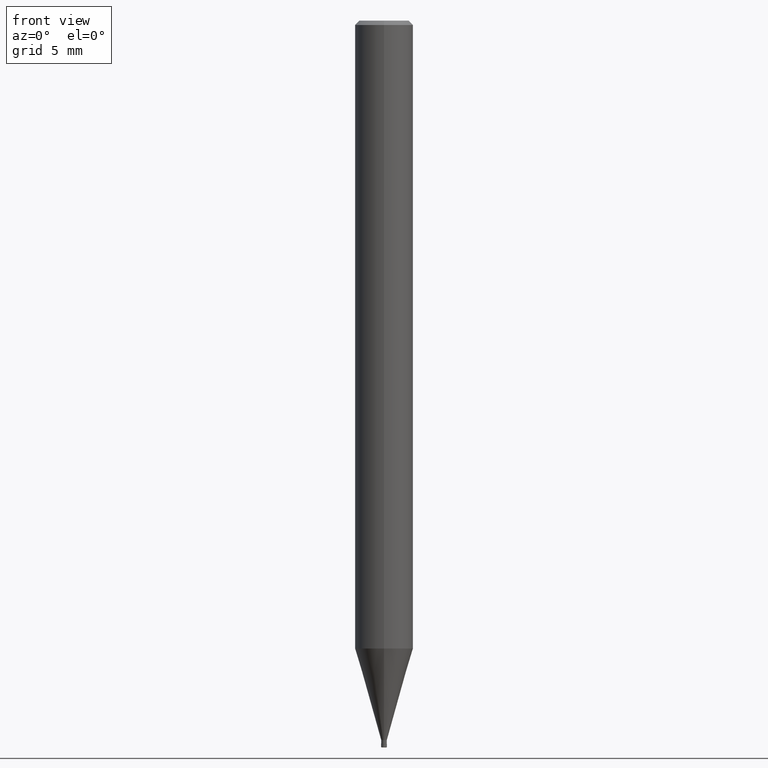
[diagram: clean part render]
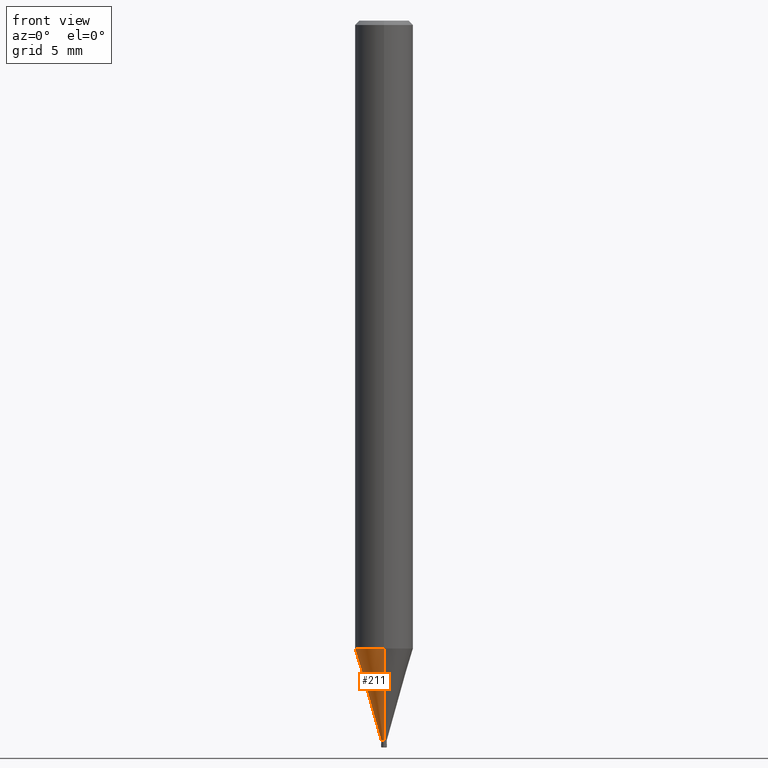
[diagram: same view with one face highlighted and labeled with its STEP entity id]
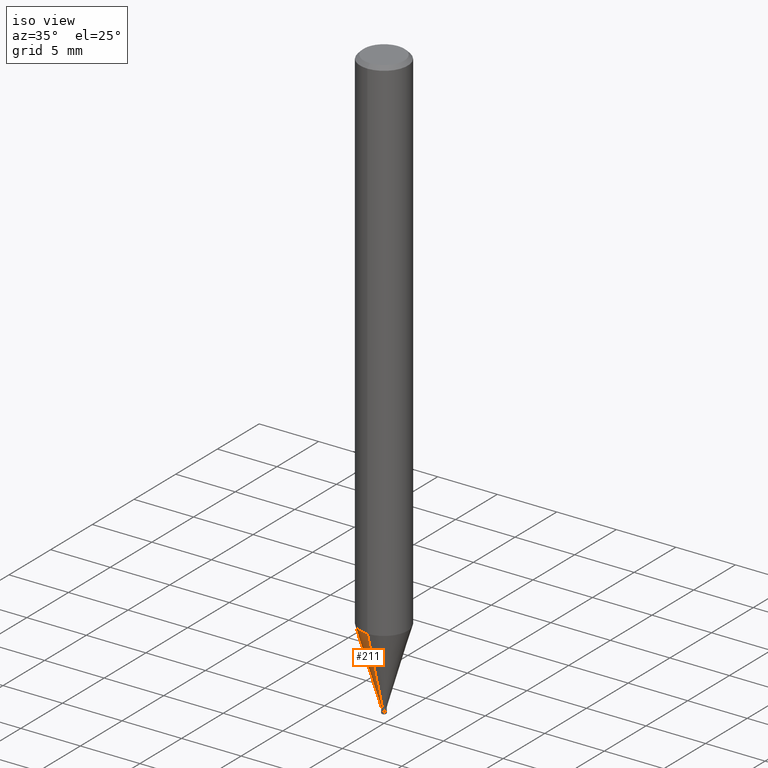
[diagram: same view with one face highlighted and labeled with its STEP entity id]
A machine part, front view. The second image highlights one B-rep face of the part: STEP entity #211.
A second angle (iso view) of the same face is appended — the face is thin or edge-on in the first view.
In plain terms, the highlighted conical surface has half-angle 15.999 deg.
Its self-contained STEP definition (entity closure, byte-faithful):
#165=EDGE_CURVE('',#235,#195,#405,.T.);
#173=EDGE_CURVE('',#331,#195,#414,.T.);
#195=VERTEX_POINT('',#441);
#199=EDGE_CURVE('',#331,#349,#445,.T.);
#211=ADVANCED_FACE('',(#457),#458,.T.);
#227=EDGE_CURVE('',#349,#235,#476,.T.);
#235=VERTEX_POINT('',#485);
#331=VERTEX_POINT('',#592);
#349=VERTEX_POINT('',#612);
#405=LINE('',#670,#671);
#414=CIRCLE('',#682,0.19245);
#441=CARTESIAN_POINT('',(0.0,0.19245,-49.49));
#445=LINE('',#717,#718);
#457=FACE_OUTER_BOUND('',#736,.T.);
#458=CONICAL_SURFACE('',#737,1.0962,0.279231732547063);
#476=CIRCLE('',#760,1.99995);
#485=CARTESIAN_POINT('',(0.0,1.99995,-43.186));
#592=CARTESIAN_POINT('',(2.35675492793117E-017,-0.19245,-49.49));
#612=CARTESIAN_POINT('',(2.44915147732706E-016,-1.99995,-43.186));
#670=CARTESIAN_POINT('',(-1.34241348506009E-016,1.0962,-46.338));
#671=VECTOR('',#991,1.0);
#682=AXIS2_PLACEMENT_3D('',#1003,#1004,#1005);
#717=CARTESIAN_POINT('',(1.34241348506009E-016,-1.0962,-46.338));
#718=VECTOR('',#1050,1.0);
#736=EDGE_LOOP('',(#1060,#1061,#1062,#1063));
#737=AXIS2_PLACEMENT_3D('',#1064,#1065,#1066);
#760=AXIS2_PLACEMENT_3D('',#1095,#1096,#1097);
#991=DIRECTION('',(3.375225981805E-017,-0.275617219465657,-0.961267469715906));
#1003=CARTESIAN_POINT('',(0.0,0.0,-49.49));
#1004=DIRECTION('',(0.0,0.0,-1.0));
#1005=DIRECTION('',(0.0,1.0,0.0));
#1050=DIRECTION('',(3.375225981805E-017,-0.275617219465657,0.961267469715906));
#1060=ORIENTED_EDGE('',*,*,#165,.T.);
#1061=ORIENTED_EDGE('',*,*,#173,.F.);
#1062=ORIENTED_EDGE('',*,*,#199,.T.);
#1063=ORIENTED_EDGE('',*,*,#227,.T.);
#1064=CARTESIAN_POINT('',(0.0,0.0,-46.338));
#1065=DIRECTION('',(-0.0,-0.0,1.0));
#1066=DIRECTION('',(0.0,1.0,0.0));
#1095=CARTESIAN_POINT('',(0.0,0.0,-43.186));
#1096=DIRECTION('',(0.0,0.0,-1.0));
#1097=DIRECTION('',(0.0,1.0,0.0));